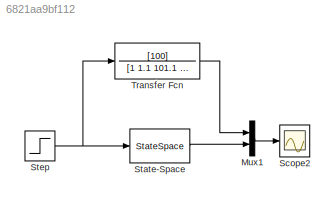
MODEL slx_6821aa9bf112
KIND model
CONFIG AbsTol = auto
CONFIG FixedStep = auto
CONFIG MaxStep = auto
CONFIG MinStep = auto
CONFIG RelTol = 1e-3
CONFIG SampleTimeConstraint = Unconstrained
CONFIG Solver = ode45
CONFIG SolverMode = Auto
CONFIG SolverName = ode45
CONFIG StartTime = 0.0
CONFIG StopTime = 10.0
BLOCK [Mux] Mux1
  DisplayOption = bar
  Inputs = 2
  Ports = [2, 1]
BLOCK [Scope] Scope2
  Floating = off
  NumInputPorts = 1
  Ports = [1]
  SaveName = ScopeData2
BLOCK [StateSpace] State-Space
  A = [0 1 0;0 0 1;0 -101.1 -1.1]
  B = [0;0;100]
  C = [1 0 0]
  D = [0]
  Ports = [1, 1]
  X0 = 0
BLOCK [Step] Step
  SampleTime = 0
BLOCK [TransferFcn] Transfer Fcn
  Denominator = [1 1.1 101.1 0]
  Numerator = [100]
LINE Mux1:1 -> Scope2:1
LINE State-Space:1 -> Mux1:2
NET Step:1 -> State-Space:1, Transfer Fcn:1
LINE Transfer Fcn:1 -> Mux1:1
note: NET lines group one-source signal fan-out (src -> all destinations, sorted); 1:1 wires keep LINE
